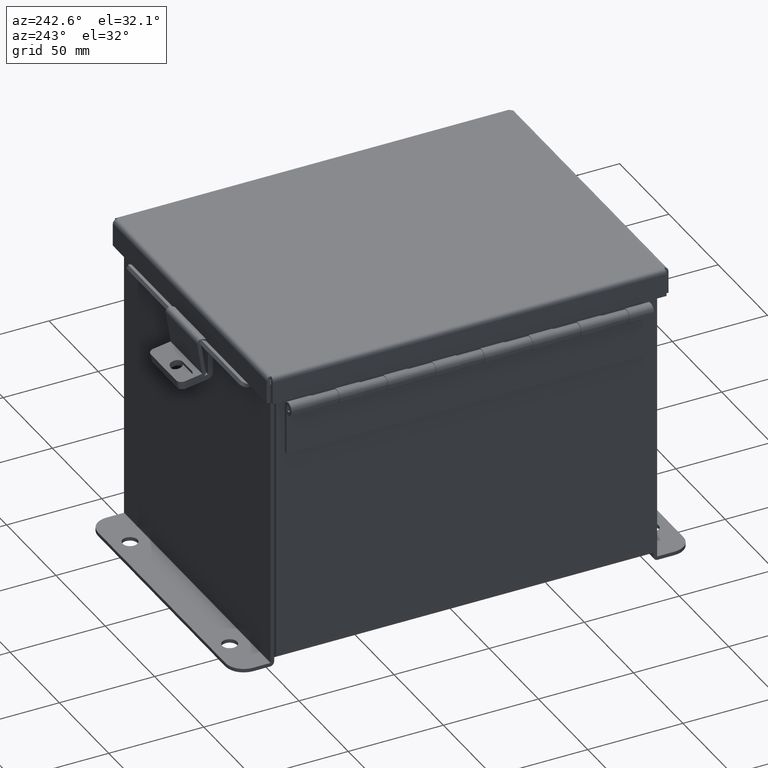
[diagram: clean part render]
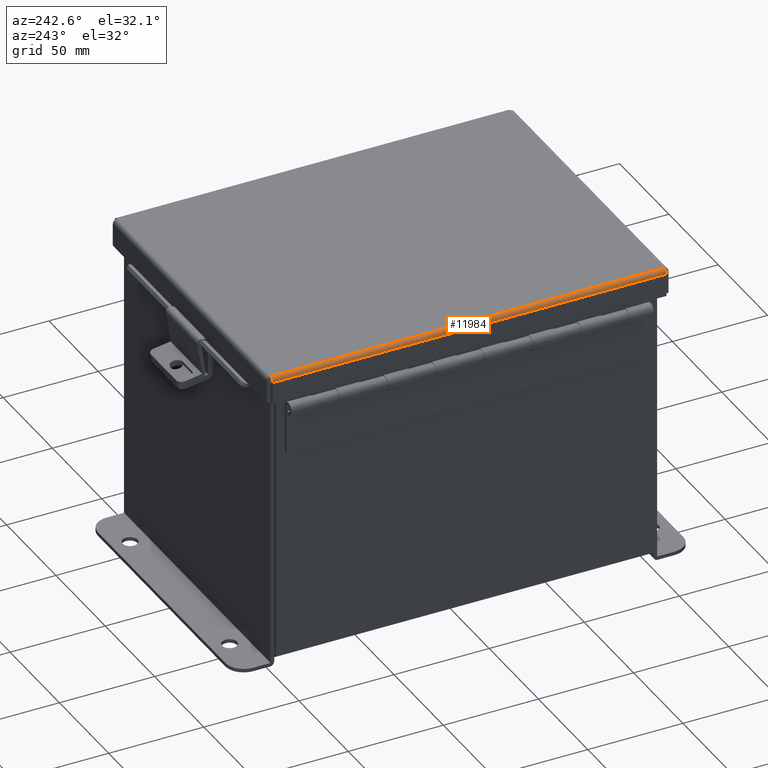
[diagram: same view with one face highlighted and labeled with its STEP entity id]
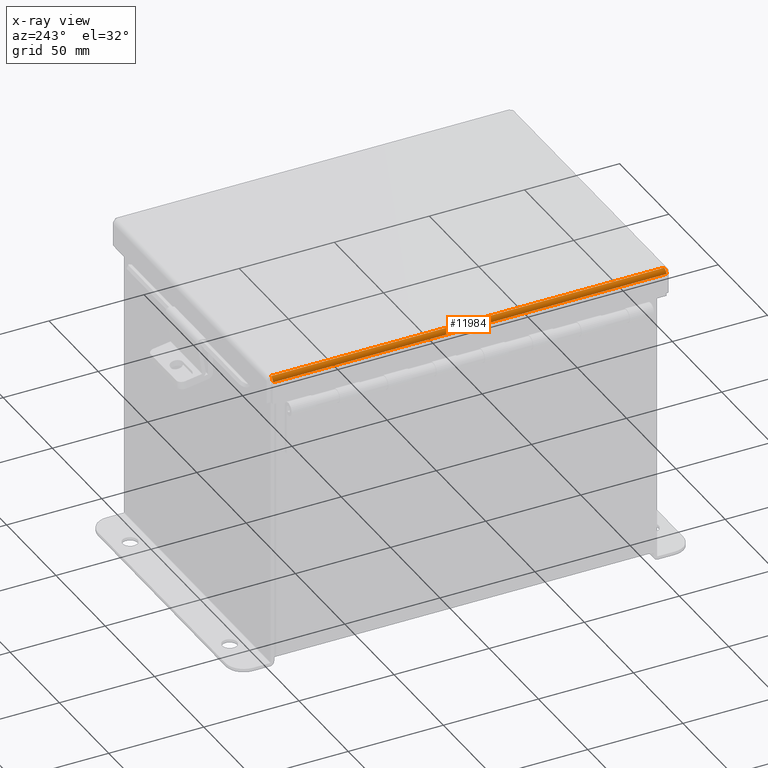
[diagram: x-ray of the same camera — body ghosted, the highlighted face saturated]
A machine part, auxiliary view. The second image highlights one B-rep face of the part: STEP entity #11984.
The next image is the same camera in x-ray: the body ghosted, the highlighted face saturated — about 0% of this face is hidden behind the body in this view.
In plain terms, the highlighted cylindrical surface (edge-blend (fillet) strip) has radius 2.2276 mm, axis along (0, 1, 0).
Its self-contained STEP definition (entity closure, byte-faithful):
#169 = DIRECTION ( 'NONE',  ( -0.0000000000000000000, -1.000000000000000000, -0.0000000000000000000 ) ) ;
#218 = CARTESIAN_POINT ( 'NONE',  ( 3.138680782078321100, 4.072008543776415300, -0.04089574734180007700 ) ) ;
#359 = EDGE_CURVE ( 'NONE', #3449, #15020, #12972, .T. ) ;
#1023 = CARTESIAN_POINT ( 'NONE',  ( 3.068550000000001000, 4.068550000000001900, -0.07469999999999994700 ) ) ;
#1061 = EDGE_CURVE ( 'NONE', #14743, #15020, #11344, .T. ) ;
#1103 = EDGE_CURVE ( 'NONE', #14743, #11531, #1486, .T. ) ;
#1275 = ORIENTED_EDGE ( 'NONE', *, *, #359, .F. ) ;
#1486 = B_SPLINE_CURVE_WITH_KNOTS ( 'NONE', 3,
 ( #7391, #2335, #6198, #9831, #218, #8359, #7234, #4920, #13417, #1023 ),
 .UNSPECIFIED., .F., .F.,
 ( 4, 2, 2, 2, 4 ),
 ( 0.0000000000000000000, 0.2500000000000000000, 0.5000000000000000000, 0.7500000000000000000, 1.000000000000000000 ),
 .UNSPECIFIED. ) ;
#2170 = CARTESIAN_POINT ( 'NONE',  ( 3.091505289458309900, -4.069538155364688800, -0.07241740374381124000 ) ) ;
#2335 = CARTESIAN_POINT ( 'NONE',  ( 3.156250000000001800, 4.073984854505791700, 0.001520096845007165000 ) ) ;
#2378 = CARTESIAN_POINT ( 'NONE',  ( 3.068550000000001400, -4.068549999999998300, -0.07469999999999994700 ) ) ;
#3301 = CARTESIAN_POINT ( 'NONE',  ( 3.156250000000000900, -4.073984854505789100, 0.001520096845007165400 ) ) ;
#3315 = CARTESIAN_POINT ( 'NONE',  ( 3.068550000000001400, -4.068549999999998300, -0.07469999999999994700 ) ) ;
#3449 = VERTEX_POINT ( 'NONE', #2378 ) ;
#3662 = CARTESIAN_POINT ( 'NONE',  ( 3.156250000000000900, -4.156250000000000000, 0.01299999999999986400 ) ) ;
#3702 = CARTESIAN_POINT ( 'NONE',  ( 3.080029903154993600, -4.069044077682343100, -0.07469999999999994700 ) ) ;
#4483 = CARTESIAN_POINT ( 'NONE',  ( 3.122445747341801200, -4.071020388411721300, -0.05713078207832042500 ) ) ;
#4920 = CARTESIAN_POINT ( 'NONE',  ( 3.091505289458309500, 4.069538155364691400, -0.07241740374381125400 ) ) ;
#5258 = DIRECTION ( 'NONE',  ( 0.0000000000000000000, 1.000000000000000000, 0.0000000000000000000 ) ) ;
#5599 = LINE ( 'NONE', #11230, #11522 ) ;
#5960 = ORIENTED_EDGE ( 'NONE', *, *, #8868, .F. ) ;
#6198 = CARTESIAN_POINT ( 'NONE',  ( 3.153967403743813200, 4.073490776823448700, -0.009955289458308987100 ) ) ;
#6648 = CARTESIAN_POINT ( 'NONE',  ( 3.156250000000000900, -4.074478932188133000, 0.01299999999999985900 ) ) ;
#6854 = AXIS2_PLACEMENT_3D ( 'NONE', #12398, #5258, #13605 ) ;
#7234 = CARTESIAN_POINT ( 'NONE',  ( 3.112717384578528500, 4.070526310729381000, -0.06363106625866842000 ) ) ;
#7391 = CARTESIAN_POINT ( 'NONE',  ( 3.156250000000000900, 4.074478932188137400, 0.01299999999999986400 ) ) ;
#7649 = CARTESIAN_POINT ( 'NONE',  ( 3.112717384578528500, -4.070526310729376500, -0.06363106625866839200 ) ) ;
#8220 = FACE_OUTER_BOUND ( 'NONE', #12081, .T. ) ;
#8359 = CARTESIAN_POINT ( 'NONE',  ( 3.122445747341800400, 4.071020388411725800, -0.05713078207832041800 ) ) ;
#8868 = EDGE_CURVE ( 'NONE', #11531, #3449, #5599, .T. ) ;
#9018 = ORIENTED_EDGE ( 'NONE', *, *, #1103, .F. ) ;
#9200 = CARTESIAN_POINT ( 'NONE',  ( 3.153967403743812300, -4.073490776823445200, -0.009955289458308985400 ) ) ;
#9290 = CARTESIAN_POINT ( 'NONE',  ( 3.068550000000001000, 4.068550000000001900, -0.07469999999999994700 ) ) ;
#9785 = CARTESIAN_POINT ( 'NONE',  ( 3.145181066258670100, -4.072502621458755600, -0.03116738457852795100 ) ) ;
#9831 = CARTESIAN_POINT ( 'NONE',  ( 3.145181066258669700, 4.072502621458758300, -0.03116738457852794700 ) ) ;
#11031 = CYLINDRICAL_SURFACE ( 'NONE', #6854, 0.08770000000000026400 ) ;
#11170 = DIRECTION ( 'NONE',  ( -0.0000000000000000000, -1.000000000000000000, -0.0000000000000000000 ) ) ;
#11230 = CARTESIAN_POINT ( 'NONE',  ( 3.068550000000001000, 4.074478932188137400, -0.07469999999999994700 ) ) ;
#11344 = LINE ( 'NONE', #3662, #13768 ) ;
#11522 = VECTOR ( 'NONE', #11170, 39.37007874015748100 ) ;
#11531 = VERTEX_POINT ( 'NONE', #9290 ) ;
#11984 = ADVANCED_FACE ( 'NONE', ( #8220 ), #11031, .T. ) ;
#12081 = EDGE_LOOP ( 'NONE', ( #5960, #9018, #14002, #1275 ) ) ;
#12398 = CARTESIAN_POINT ( 'NONE',  ( 3.068550000000001000, 4.074478932188137400, 0.01300000000000015000 ) ) ;
#12972 = B_SPLINE_CURVE_WITH_KNOTS ( 'NONE', 3,
 ( #3315, #3702, #2170, #7649, #4483, #14027, #9785, #9200, #3301, #14041 ),
 .UNSPECIFIED., .F., .F.,
 ( 4, 2, 2, 2, 4 ),
 ( 0.0000000000000000000, 0.2500000000000000000, 0.5000000000000000000, 0.7500000000000000000, 1.000000000000000000 ),
 .UNSPECIFIED. ) ;
#13417 = CARTESIAN_POINT ( 'NONE',  ( 3.080029903154993100, 4.069044077682347500, -0.07469999999999994700 ) ) ;
#13605 = DIRECTION ( 'NONE',  ( 1.000000000000000000, 0.0000000000000000000, -3.358350761880586900E-015 ) ) ;
#13768 = VECTOR ( 'NONE', #169, 39.37007874015748100 ) ;
#14002 = ORIENTED_EDGE ( 'NONE', *, *, #1061, .T. ) ;
#14027 = CARTESIAN_POINT ( 'NONE',  ( 3.138680782078322000, -4.072008543776410900, -0.04089574734180008400 ) ) ;
#14041 = CARTESIAN_POINT ( 'NONE',  ( 3.156250000000000900, -4.074478932188133000, 0.01299999999999985900 ) ) ;
#14420 = CARTESIAN_POINT ( 'NONE',  ( 3.156250000000000900, 4.074478932188137400, 0.01299999999999986400 ) ) ;
#14743 = VERTEX_POINT ( 'NONE', #14420 ) ;
#15020 = VERTEX_POINT ( 'NONE', #6648 ) ;